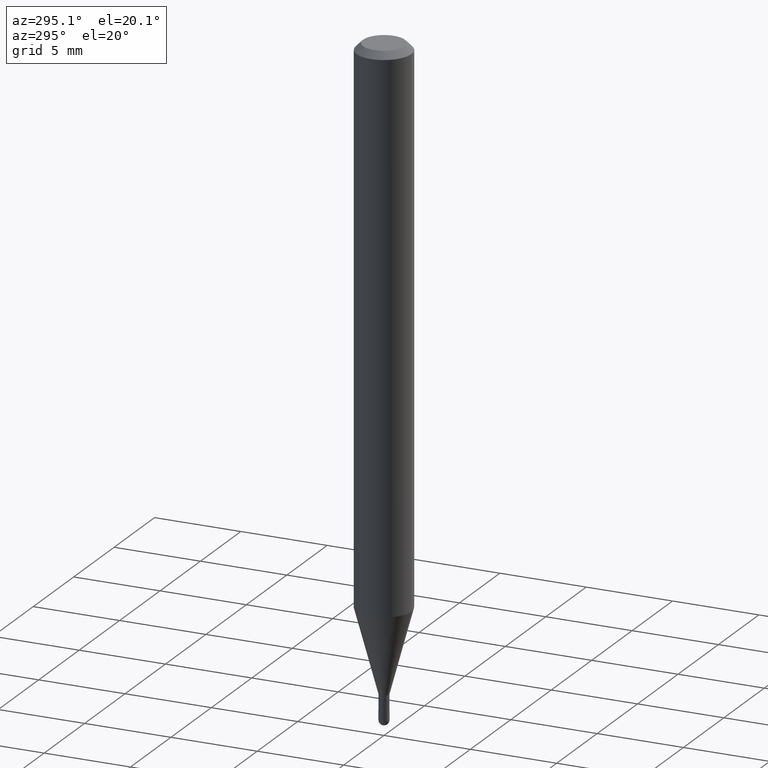
[diagram: clean part render]
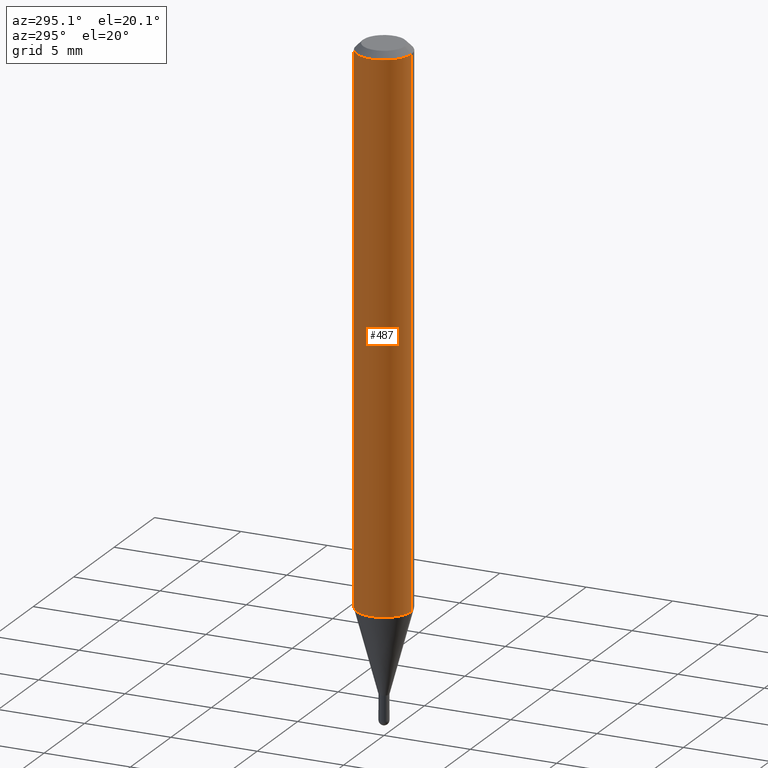
[diagram: same view with one face highlighted and labeled with its STEP entity id]
A machine part, auxiliary view. The second image highlights one B-rep face of the part: STEP entity #487.
In plain terms, the highlighted cylindrical surface (edge-blend (fillet) strip) has radius 1.5875 mm, axis along (-0, 0, 1).
Its self-contained STEP definition (entity closure, byte-faithful):
#5 = CARTESIAN_POINT ( 'NONE',  ( -4.364351673553613969E-16, -0.06250000000000432987, -1.240665408813993009 ) ) ;
#11 = DIRECTION ( 'NONE',  ( -2.445482672155709146E-29, 3.491461481984083655E-15, 1.000000000000000000 ) ) ;
#16 = EDGE_CURVE ( 'NONE', #476, #337, #298, .T. ) ;
#22 = VERTEX_POINT ( 'NONE', #30 ) ;
#28 = DIRECTION ( 'NONE',  ( -2.445482672155709146E-29, 3.491461481984083655E-15, 1.000000000000000000 ) ) ;
#30 = CARTESIAN_POINT ( 'NONE',  ( -4.364351673553912750E-16, -0.06250000000000005551, -0.01499999999999979128 ) ) ;
#37 = DIRECTION ( 'NONE',  ( -2.445482672155709146E-29, 3.491461481984083655E-15, 1.000000000000000000 ) ) ;
#39 = DIRECTION ( 'NONE',  ( -6.982962677686265922E-15, -1.000000000000000000, 3.483106191921935554E-15 ) ) ;
#90 = CARTESIAN_POINT ( 'NONE',  ( -4.364351673553916201E-16, -0.06250000000000000000, 2.182163426240052284E-16 ) ) ;
#95 = VECTOR ( 'NONE', #37, 39.37007874015748143 ) ;
#97 = CYLINDRICAL_SURFACE ( 'NONE', #297, 0.06250000000000000000 ) ;
#139 = DIRECTION ( 'NONE',  ( -6.982962677686265922E-15, -1.000000000000000000, 3.491461481984083655E-15 ) ) ;
#147 = VECTOR ( 'NONE', #11, 39.37007874015748143 ) ;
#171 = ORIENTED_EDGE ( 'NONE', *, *, #16, .F. ) ;
#197 = ORIENTED_EDGE ( 'NONE', *, *, #429, .T. ) ;
#217 = CARTESIAN_POINT ( 'NONE',  ( 4.440892098500625669E-16, 0.06250000000000000000, -2.182163426240052284E-16 ) ) ;
#241 = CARTESIAN_POINT ( 'NONE',  ( 3.034025759197599694E-29, -4.331735486904094553E-15, -1.240665408813993231 ) ) ;
#248 = FACE_OUTER_BOUND ( 'NONE', #302, .T. ) ;
#254 = CARTESIAN_POINT ( 'NONE',  ( 3.668224008233565961E-31, -5.237192222976128786E-17, -0.01500000000000000812 ) ) ;
#286 = EDGE_CURVE ( 'NONE', #337, #22, #289, .T. ) ;
#289 = CIRCLE ( 'NONE', #480, 0.06250000000000000000 ) ;
#294 = ORIENTED_EDGE ( 'NONE', *, *, #506, .T. ) ;
#297 = AXIS2_PLACEMENT_3D ( 'NONE', #411, #452, #139 ) ;
#298 = LINE ( 'NONE', #217, #95 ) ;
#302 = EDGE_LOOP ( 'NONE', ( #171, #294, #197, #426 ) ) ;
#311 = DIRECTION ( 'NONE',  ( -2.445482672155709146E-29, 3.491461481984083655E-15, 1.000000000000000000 ) ) ;
#334 = CARTESIAN_POINT ( 'NONE',  ( 4.440892098500927901E-16, 0.06249999999999567013, -1.240665408813993453 ) ) ;
#337 = VERTEX_POINT ( 'NONE', #359 ) ;
#339 = AXIS2_PLACEMENT_3D ( 'NONE', #241, #28, #455 ) ;
#359 = CARTESIAN_POINT ( 'NONE',  ( 4.440892098500930859E-16, 0.06249999999999995143, -0.01500000000000022669 ) ) ;
#382 = LINE ( 'NONE', #90, #147 ) ;
#383 = CIRCLE ( 'NONE', #339, 0.06250000000000000000 ) ;
#411 = CARTESIAN_POINT ( 'NONE',  ( 0.000000000000000000, 0.000000000000000000, 0.000000000000000000 ) ) ;
#426 = ORIENTED_EDGE ( 'NONE', *, *, #286, .F. ) ;
#429 = EDGE_CURVE ( 'NONE', #464, #22, #382, .T. ) ;
#452 = DIRECTION ( 'NONE',  ( -2.445482672155709146E-29, 3.491461481984083655E-15, 1.000000000000000000 ) ) ;
#455 = DIRECTION ( 'NONE',  ( -6.982962677686265922E-15, -1.000000000000000000, 4.370956789862821150E-15 ) ) ;
#464 = VERTEX_POINT ( 'NONE', #5 ) ;
#476 = VERTEX_POINT ( 'NONE', #334 ) ;
#480 = AXIS2_PLACEMENT_3D ( 'NONE', #254, #311, #39 ) ;
#487 = ADVANCED_FACE ( 'NONE', ( #248 ), #97, .T. ) ;
#506 = EDGE_CURVE ( 'NONE', #476, #464, #383, .T. ) ;